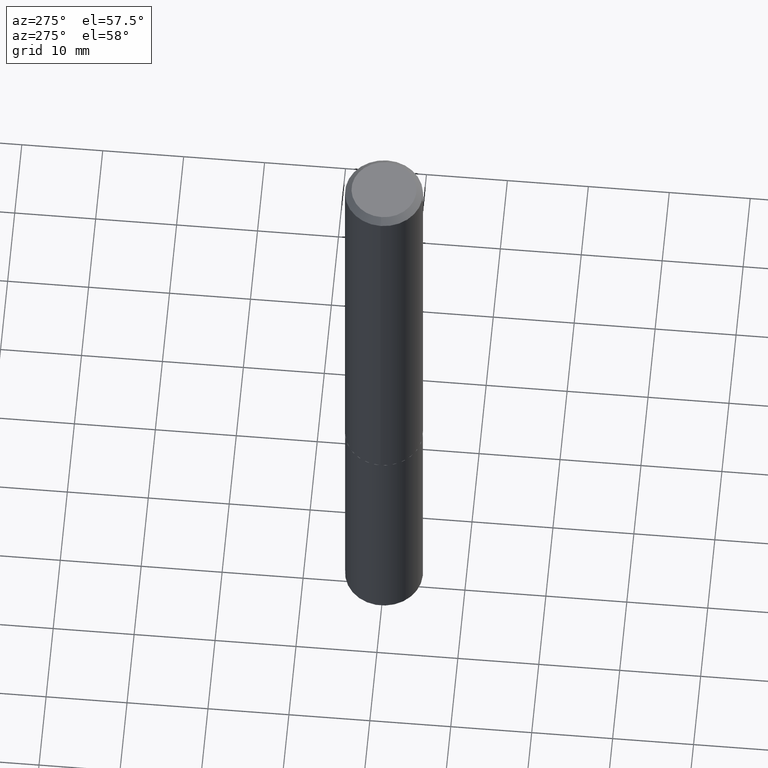
[diagram: clean part render]
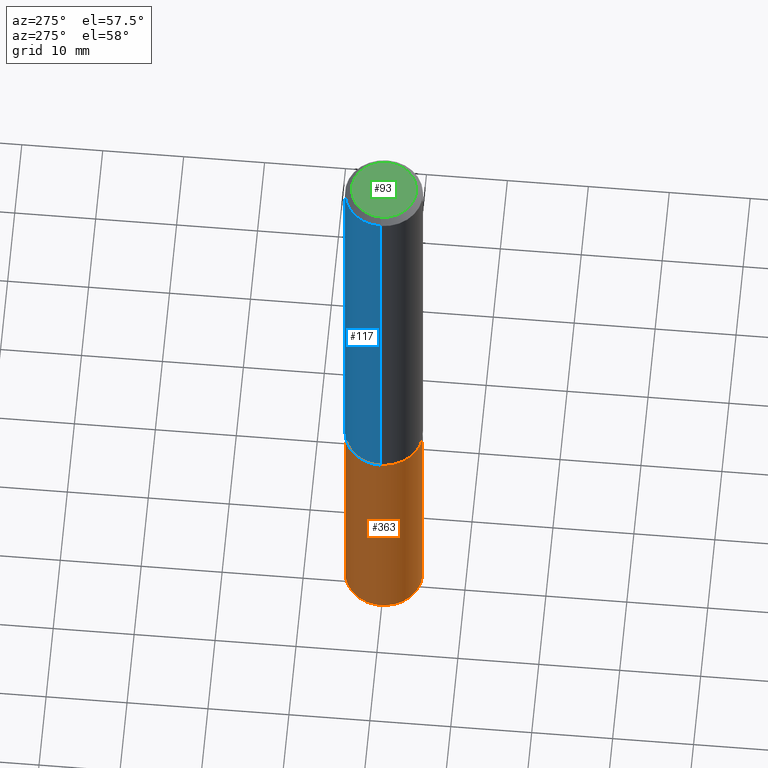
[diagram: same view with three faces highlighted in distinct colors, each labeled with its STEP entity id]
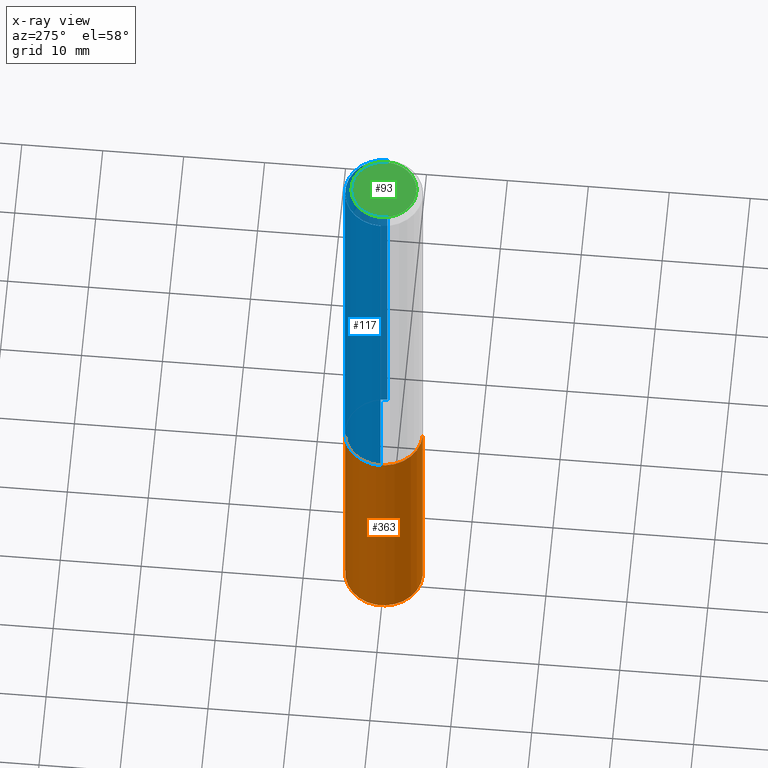
[diagram: x-ray of the same camera — body ghosted, the three highlighted faces saturated]
A machine part, auxiliary view with three faces highlighted in distinct colors.
The next image is the same camera in x-ray (body ghosted, the three faces saturated) — at least one of them is partly hidden behind the body in this view.
Their STEP definitions:

[orange] entity #363 — the highlighted cylindrical surface (partial cylindrical patch) has radius 4.8006 mm, axis along (-0, 0, 1).
#4 = VERTEX_POINT ( 'NONE', #370 ) ;
#22 = DIRECTION ( 'NONE',  ( -2.445342716562640584E-29, 3.491661906359135627E-15, 1.000000000000000000 ) ) ;
#24 = VECTOR ( 'NONE', #291, 39.37007874015748143 ) ;
#51 = LINE ( 'NONE', #172, #24 ) ;
#54 = FACE_OUTER_BOUND ( 'NONE', #136, .T. ) ;
#66 = EDGE_CURVE ( 'NONE', #305, #344, #91, .T. ) ;
#70 = ORIENTED_EDGE ( 'NONE', *, *, #245, .T. ) ;
#74 = ORIENTED_EDGE ( 'NONE', *, *, #218, .F. ) ;
#79 = CARTESIAN_POINT ( 'NONE',  ( 5.353131216739262468E-29, -7.642852650727643969E-15, -2.188999999999999613 ) ) ;
#82 = CARTESIAN_POINT ( 'NONE',  ( -1.319779946082650387E-15, -0.1890000000000076341, -2.188999999999999169 ) ) ;
#91 = CIRCLE ( 'NONE', #250, 0.1889999999999999736 ) ;
#128 = EDGE_CURVE ( 'NONE', #305, #4, #141, .T. ) ;
#136 = EDGE_LOOP ( 'NONE', ( #184, #234, #70, #74 ) ) ;
#138 = DIRECTION ( 'NONE',  ( -6.982962677686265922E-15, -1.000000000000000000, 2.890844437739961472E-15 ) ) ;
#140 = CARTESIAN_POINT ( 'NONE',  ( 1.342925770586672783E-15, 0.1889999999999878166, -3.453257602630518175 ) ) ;
#141 = LINE ( 'NONE', #376, #146 ) ;
#146 = VECTOR ( 'NONE', #22, 39.37007874015748143 ) ;
#172 = CARTESIAN_POINT ( 'NONE',  ( -1.319779946082650387E-15, -0.1890000000000076341, -2.188999999999999169 ) ) ;
#174 = CYLINDRICAL_SURFACE ( 'NONE', #186, 0.1889999999999999736 ) ;
#184 = ORIENTED_EDGE ( 'NONE', *, *, #128, .F. ) ;
#186 = AXIS2_PLACEMENT_3D ( 'NONE', #79, #283, #317 ) ;
#198 = CARTESIAN_POINT ( 'NONE',  ( 5.353131216739262468E-29, -7.642852650727643969E-15, -2.188999999999999613 ) ) ;
#201 = AXIS2_PLACEMENT_3D ( 'NONE', #198, #343, #138 ) ;
#215 = VERTEX_POINT ( 'NONE', #82 ) ;
#218 = EDGE_CURVE ( 'NONE', #4, #215, #268, .T. ) ;
#227 = CARTESIAN_POINT ( 'NONE',  ( -1.319779946082618833E-15, -0.1890000000000119362, -3.453257602630517287 ) ) ;
#234 = ORIENTED_EDGE ( 'NONE', *, *, #66, .T. ) ;
#245 = EDGE_CURVE ( 'NONE', #344, #215, #51, .T. ) ;
#250 = AXIS2_PLACEMENT_3D ( 'NONE', #289, #323, #377 ) ;
#268 = CIRCLE ( 'NONE', #201, 0.1889999999999999736 ) ;
#283 = DIRECTION ( 'NONE',  ( -2.445342716562640584E-29, 3.491661906359135627E-15, 1.000000000000000000 ) ) ;
#289 = CARTESIAN_POINT ( 'NONE',  ( 8.444674337190745942E-29, -1.205721276165754944E-14, -3.453257602630517731 ) ) ;
#291 = DIRECTION ( 'NONE',  ( -2.445342716562640584E-29, 3.491661906359135627E-15, 1.000000000000000000 ) ) ;
#305 = VERTEX_POINT ( 'NONE', #140 ) ;
#317 = DIRECTION ( 'NONE',  ( -6.982962677686265922E-15, -1.000000000000000000, 2.890844437739961472E-15 ) ) ;
#323 = DIRECTION ( 'NONE',  ( -2.445342716562640584E-29, 3.491661906359135627E-15, 1.000000000000000000 ) ) ;
#343 = DIRECTION ( 'NONE',  ( -2.445342716562640584E-29, 3.491661906359135627E-15, 1.000000000000000000 ) ) ;
#344 = VERTEX_POINT ( 'NONE', #227 ) ;
#363 = ADVANCED_FACE ( 'NONE', ( #54 ), #174, .T. ) ;
#370 = CARTESIAN_POINT ( 'NONE',  ( 1.342925770586673769E-15, 0.1889999999999923408, -2.189000000000000057 ) ) ;
#376 = CARTESIAN_POINT ( 'NONE',  ( 1.342925770586642609E-15, 0.1889999999999923408, -2.189000000000000057 ) ) ;
#377 = DIRECTION ( 'NONE',  ( -6.982962677686265922E-15, -1.000000000000000000, 2.890844437739961472E-15 ) ) ;

[blue] entity #117 — the highlighted cylindrical surface (partial cylindrical patch) has radius 4.8006 mm, axis along (-0, 0, 1).
#2 = CARTESIAN_POINT ( 'NONE',  ( 7.642090019328602662E-31, -1.091087918388490267E-16, -0.03125000000000020817 ) ) ;
#5 = DIRECTION ( 'NONE',  ( 1.000000000000000000, -6.982962677686266711E-15, 4.876176775795936353E-29 ) ) ;
#8 = CARTESIAN_POINT ( 'NONE',  ( 0.000000000000000000, 0.000000000000000000, 0.000000000000000000 ) ) ;
#15 = VERTEX_POINT ( 'NONE', #200 ) ;
#23 = EDGE_CURVE ( 'NONE', #15, #308, #169, .T. ) ;
#31 = DIRECTION ( 'NONE',  ( -2.445468806185136597E-29, 3.491481338843145583E-15, 1.000000000000000000 ) ) ;
#32 = CYLINDRICAL_SURFACE ( 'NONE', #351, 0.1890000000000000846 ) ;
#35 = EDGE_LOOP ( 'NONE', ( #226, #331, #333, #157 ) ) ;
#45 = CARTESIAN_POINT ( 'NONE',  ( 0.1889999999999999736, -1.428888737921553328E-15, -0.03125000000000020817 ) ) ;
#65 = CIRCLE ( 'NONE', #281, 0.1890000000000002234 ) ;
#100 = CARTESIAN_POINT ( 'NONE',  ( 0.1890000000000000846, -1.319779946082705016E-15, 9.215974106254323525E-30 ) ) ;
#111 = CARTESIAN_POINT ( 'NONE',  ( -0.1890000000000000846, 1.342925770586589952E-15, -9.296787320581776866E-30 ) ) ;
#117 = ADVANCED_FACE ( 'NONE', ( #249 ), #32, .T. ) ;
#131 = EDGE_CURVE ( 'NONE', #15, #341, #65, .T. ) ;
#132 = CARTESIAN_POINT ( 'NONE',  ( 5.351908482336170787E-29, -7.641106910058223254E-15, -2.188499999999999446 ) ) ;
#139 = DIRECTION ( 'NONE',  ( -2.445468806185136877E-29, 3.491481338843145188E-15, 1.000000000000000000 ) ) ;
#151 = VECTOR ( 'NONE', #139, 39.37007874015748143 ) ;
#157 = ORIENTED_EDGE ( 'NONE', *, *, #23, .F. ) ;
#158 = AXIS2_PLACEMENT_3D ( 'NONE', #2, #31, #232 ) ;
#169 = LINE ( 'NONE', #100, #151 ) ;
#187 = VERTEX_POINT ( 'NONE', #194 ) ;
#194 = CARTESIAN_POINT ( 'NONE',  ( -0.1889999999999999736, -2.532182080361945239E-15, -0.03125000000000020817 ) ) ;
#200 = CARTESIAN_POINT ( 'NONE',  ( 0.1890000000000002234, -8.960886856140928862E-15, -2.188499999999999446 ) ) ;
#226 = ORIENTED_EDGE ( 'NONE', *, *, #131, .T. ) ;
#232 = DIRECTION ( 'NONE',  ( 1.000000000000000000, -6.982962677686266711E-15, 0.000000000000000000 ) ) ;
#233 = DIRECTION ( 'NONE',  ( -2.445468806185136597E-29, 3.491481338843145583E-15, 1.000000000000000000 ) ) ;
#247 = DIRECTION ( 'NONE',  ( -2.445468806185136597E-29, 3.491481338843145583E-15, 1.000000000000000000 ) ) ;
#249 = FACE_OUTER_BOUND ( 'NONE', #35, .T. ) ;
#255 = DIRECTION ( 'NONE',  ( -2.445468806185136877E-29, 3.491481338843145188E-15, 1.000000000000000000 ) ) ;
#260 = EDGE_CURVE ( 'NONE', #308, #187, #350, .T. ) ;
#265 = EDGE_CURVE ( 'NONE', #341, #187, #381, .T. ) ;
#281 = AXIS2_PLACEMENT_3D ( 'NONE', #132, #233, #353 ) ;
#308 = VERTEX_POINT ( 'NONE', #45 ) ;
#327 = VECTOR ( 'NONE', #255, 39.37007874015748143 ) ;
#331 = ORIENTED_EDGE ( 'NONE', *, *, #265, .T. ) ;
#333 = ORIENTED_EDGE ( 'NONE', *, *, #260, .F. ) ;
#341 = VERTEX_POINT ( 'NONE', #342 ) ;
#342 = CARTESIAN_POINT ( 'NONE',  ( -0.1890000000000002234, -6.298181139471631921E-15, -2.188499999999999446 ) ) ;
#350 = CIRCLE ( 'NONE', #158, 0.1889999999999999736 ) ;
#351 = AXIS2_PLACEMENT_3D ( 'NONE', #8, #247, #5 ) ;
#353 = DIRECTION ( 'NONE',  ( 1.000000000000000000, -6.982962677686262766E-15, 0.000000000000000000 ) ) ;
#381 = LINE ( 'NONE', #111, #327 ) ;

[green] entity #93 — the highlighted planar face has unit normal (0, -0, -1).
#9 = EDGE_LOOP ( 'NONE', ( #17, #282 ) ) ;
#12 = CIRCLE ( 'NONE', #366, 0.1577499999999999736 ) ;
#13 = CIRCLE ( 'NONE', #374, 0.1577499999999999736 ) ;
#17 = ORIENTED_EDGE ( 'NONE', *, *, #161, .T. ) ;
#18 = FACE_OUTER_BOUND ( 'NONE', #9, .T. ) ;
#37 = VERTEX_POINT ( 'NONE', #224 ) ;
#50 = DIRECTION ( 'NONE',  ( 1.000000000000000000, -6.982962677686266711E-15, 4.876176521701035620E-29 ) ) ;
#80 = CARTESIAN_POINT ( 'NONE',  ( -0.1577499999999999736, 1.156116758324431759E-15, 4.837354856553074411E-19 ) ) ;
#81 = DIRECTION ( 'NONE',  ( 2.438088387897960049E-29, -3.491481338843145188E-15, -1.000000000000000000 ) ) ;
#93 = ADVANCED_FACE ( 'NONE', ( #18 ), #108, .F. ) ;
#106 = CARTESIAN_POINT ( 'NONE',  ( -1.182960040634176917E-47, 1.688953421129294557E-33, 4.837354856632017316E-19 ) ) ;
#108 = PLANE ( 'NONE',  #368 ) ;
#161 = EDGE_CURVE ( 'NONE', #164, #37, #12, .T. ) ;
#164 = VERTEX_POINT ( 'NONE', #80 ) ;
#197 = DIRECTION ( 'NONE',  ( -1.000000000000000000, 6.982962677686265922E-15, -4.876176775795935793E-29 ) ) ;
#224 = CARTESIAN_POINT ( 'NONE',  ( 0.1577499999999999736, -1.243993236283063660E-15, 4.837354856714027265E-19 ) ) ;
#229 = CARTESIAN_POINT ( 'NONE',  ( -5.914800203170884586E-48, 8.444767105646472787E-34, 2.418677428316008658E-19 ) ) ;
#263 = DIRECTION ( 'NONE',  ( -2.445468806185136597E-29, 3.491481338843145583E-15, 1.000000000000000000 ) ) ;
#264 = DIRECTION ( 'NONE',  ( 1.000000000000000000, -6.982962677686266711E-15, 4.876176521701035620E-29 ) ) ;
#267 = CARTESIAN_POINT ( 'NONE',  ( -1.182960040634176917E-47, 1.688953421129294557E-33, 4.837354856632017316E-19 ) ) ;
#282 = ORIENTED_EDGE ( 'NONE', *, *, #330, .T. ) ;
#330 = EDGE_CURVE ( 'NONE', #37, #164, #13, .T. ) ;
#366 = AXIS2_PLACEMENT_3D ( 'NONE', #267, #384, #264 ) ;
#368 = AXIS2_PLACEMENT_3D ( 'NONE', #229, #81, #197 ) ;
#374 = AXIS2_PLACEMENT_3D ( 'NONE', #106, #263, #50 ) ;
#384 = DIRECTION ( 'NONE',  ( -2.445468806185136597E-29, 3.491481338843145583E-15, 1.000000000000000000 ) ) ;